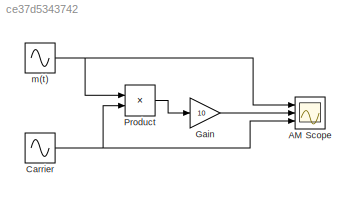
MODEL slx_ce37d5343742
KIND model
CONFIG AbsTol = auto
CONFIG EnableMultiTasking = off
CONFIG FixedStep = 0.01
CONFIG MaxStep = auto
CONFIG MinStep = auto
CONFIG RelTol = 1e-3
CONFIG SampleTimeConstraint = Unconstrained
CONFIG SolverName = ode3
CONFIG StartTime = 0.0
CONFIG StopTime = 10.0
BLOCK [Scope] AM Scope
  Floating = off
  NumInputPorts = 3
  Ports = [3]
  ScopeSpecificationString = Simulink.scopes.TimeScopeBlockCfg('CurrentConfiguration', extmgr.ConfigurationSet(extmgr.Configuration('Core','General UI',true),extmgr.Configuration('Core','Source UI',true),extmgr.Configuration('Sources','WiredSimulink',true),extmgr.Configuration('Visuals','Time Domain',true,'SerializedDisplays',{struct('MinYLimReal','-2.5','MaxYLimReal','2.5','YLabelReal','','MinYLimMag','0.00000','MaxYLimMag',...<+2647ch>
BLOCK [Sin] Carrier
  Amplitude = 20
  Frequency = 5
  Ports = [0, 1]
  SampleTime = 0
BLOCK [Gain] Gain
  Gain = 10
BLOCK [Product] Product
  Ports = [2, 1]
BLOCK [Sin] m(t)
  Amplitude = 2
  Frequency = 2*3.1416
  Ports = [0, 1]
  SampleTime = 0
NET Carrier:1 -> AM Scope:3, Product:2
LINE Gain:1 -> AM Scope:2
LINE Product:1 -> Gain:1
NET m(t):1 -> AM Scope:1, Product:1
note: NET lines group one-source signal fan-out (src -> all destinations, sorted); 1:1 wires keep LINE
